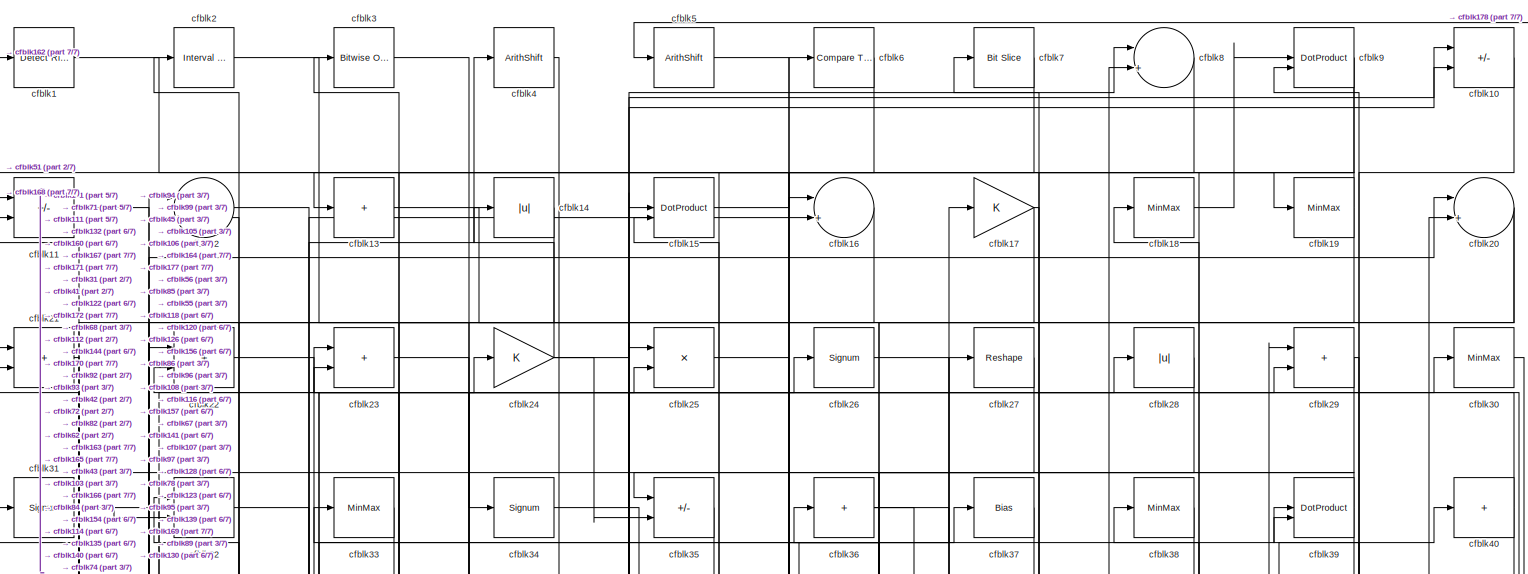
[diagram: root canvas - part 1/7, full width, top band]
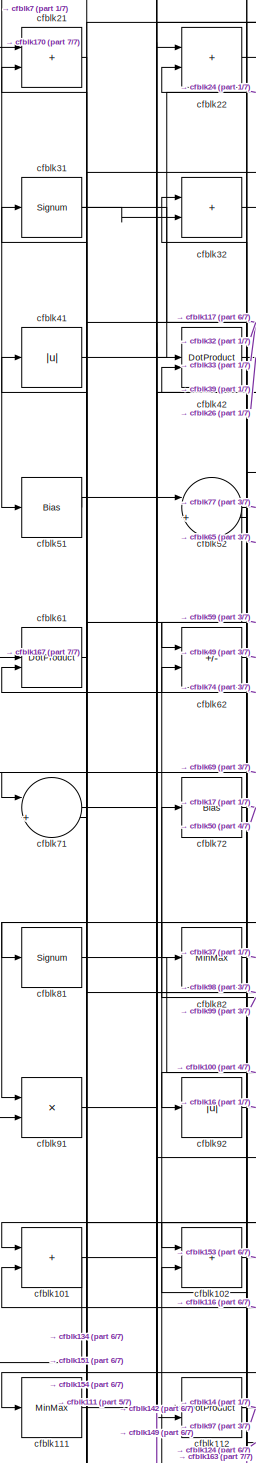
[diagram: root canvas - part 2/7, middle left region]
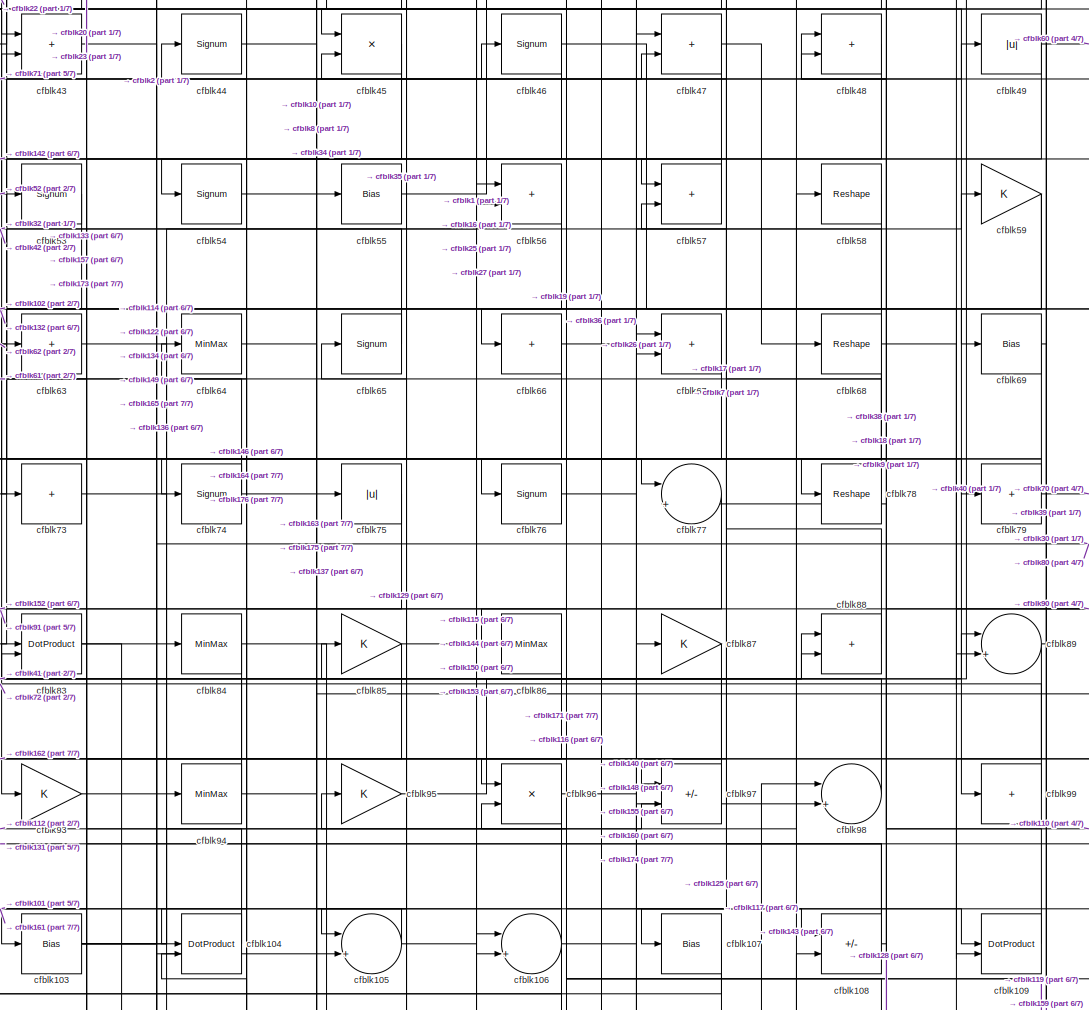
[diagram: root canvas - part 3/7, central region]
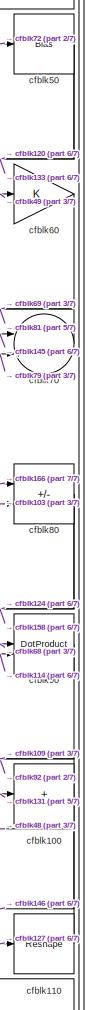
[diagram: root canvas - part 4/7, middle right region]
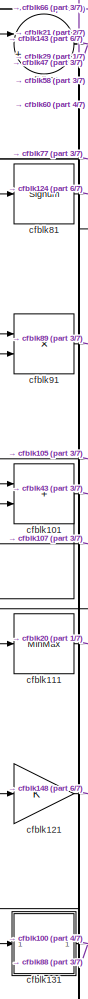
[diagram: root canvas - part 5/7, middle left region]
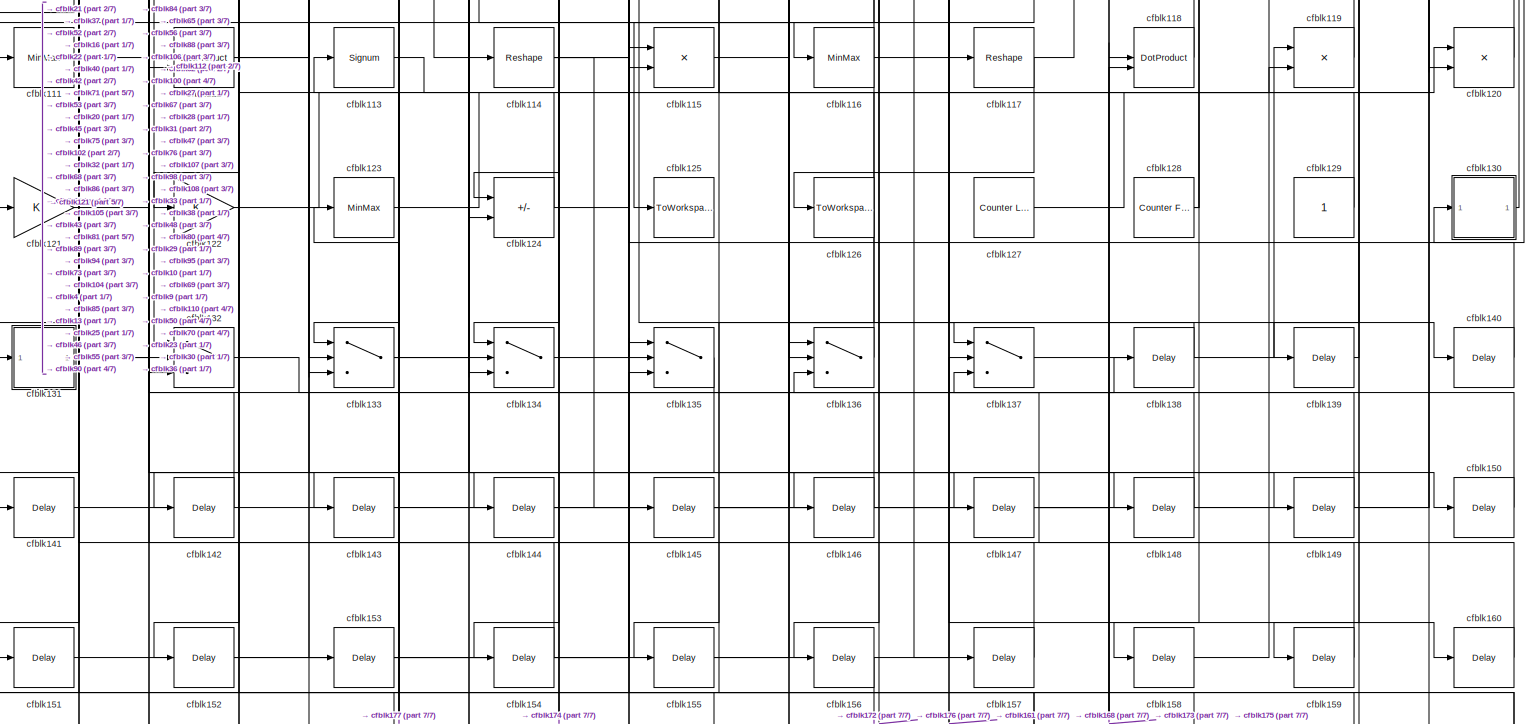
[diagram: root canvas - part 6/7, full width, bottom band]
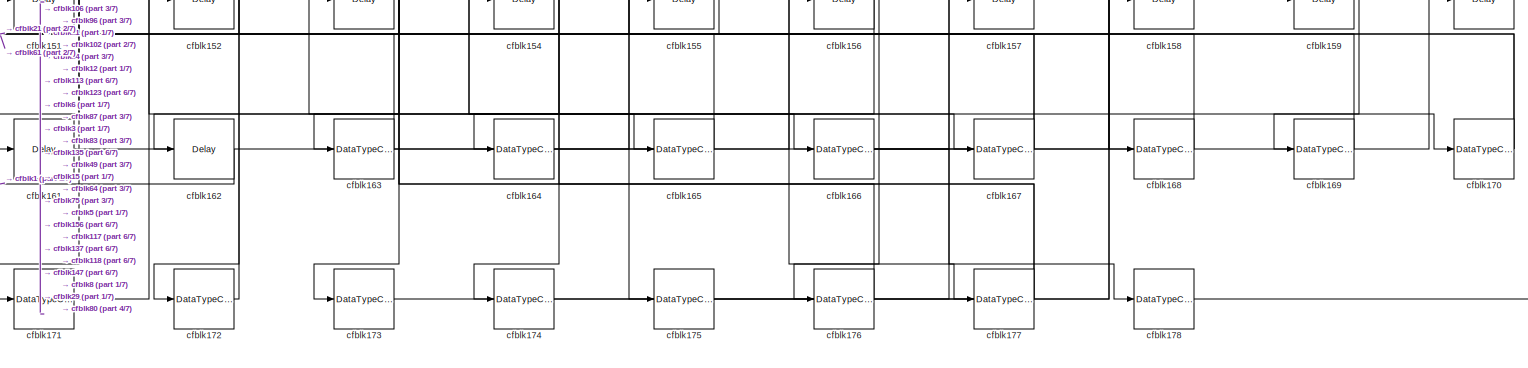
[diagram: root canvas - part 7/7, full width, bottom band]
MODEL slx_b1faa9f8dd1f
KIND model
CONFIG AbsTol = auto
CONFIG EnableMultiTasking = off
CONFIG FixedStep = auto
CONFIG MaxStep = auto
CONFIG MinStep = auto
CONFIG RelTol = 1e-3
CONFIG SampleTimeConstraint = Unconstrained
CONFIG SolverName = VariableStepAuto
CONFIG StartTime = 0.0
CONFIG StopTime = 10.0
BLOCK [Reference] cfblk1  REF=hdlsllib/Logic and Bit
Operations/Detect Rise
Positive
  SourceBlock = hdlsllib/Logic and Bit\nOperations/Detect Rise\nPositive
  SourceType = Detect Rise Positive
BLOCK [Sum] cfblk10
  IconShape = rectangular
  Inputs = +-
BLOCK [Sum] cfblk100
  IconShape = rectangular
  Inputs = +
BLOCK [Sum] cfblk101
  IconShape = rectangular
BLOCK [Sum] cfblk102
  IconShape = rectangular
BLOCK [Bias] cfblk103
  Bias = 0.0
  SaturateOnIntegerOverflow = off
BLOCK [DotProduct] cfblk104
  OutDataTypeStr = Inherit: Inherit via internal rule
BLOCK [Sum] cfblk105
  Inputs = |++
BLOCK [Sum] cfblk106
  Inputs = |++
BLOCK [Bias] cfblk107
  Bias = 0.0
  SaturateOnIntegerOverflow = off
BLOCK [Sum] cfblk108
  IconShape = rectangular
  Inputs = +-
BLOCK [DotProduct] cfblk109
  OutDataTypeStr = Inherit: Inherit via internal rule
BLOCK [Sum] cfblk11
  IconShape = rectangular
  Inputs = +-
BLOCK [Reshape] cfblk110
BLOCK [MinMax] cfblk111
BLOCK [DotProduct] cfblk112
  OutDataTypeStr = Inherit: Inherit via internal rule
BLOCK [Signum] cfblk113
BLOCK [Reshape] cfblk114
BLOCK [Product] cfblk115
  Inputs = */
  RndMeth = Zero
  SaturateOnIntegerOverflow = on
BLOCK [MinMax] cfblk116
BLOCK [Reshape] cfblk117
BLOCK [DotProduct] cfblk118
  OutDataTypeStr = Inherit: Inherit via internal rule
BLOCK [Product] cfblk119
  Inputs = */
  RndMeth = Zero
  SaturateOnIntegerOverflow = on
BLOCK [Sum] cfblk12
  Inputs = |++
BLOCK [Product] cfblk120
  Inputs = */
  RndMeth = Zero
  SaturateOnIntegerOverflow = on
BLOCK [Gain] cfblk121
BLOCK [Gain] cfblk122
BLOCK [MinMax] cfblk123
BLOCK [Sum] cfblk124
  IconShape = rectangular
  Inputs = +-
BLOCK [ToWorkspace] cfblk125
  MaxDataPoints = inf
  SampleTime = -1
  SaveFormat = Timeseries
  VariableName = simout
BLOCK [ToWorkspace] cfblk126
  MaxDataPoints = inf
  SampleTime = -1
  SaveFormat = Timeseries
  VariableName = simout
BLOCK [Reference] cfblk127  REF=hdlsllib/Sources/Counter
Limited
  SourceBlock = hdlsllib/Sources/Counter\nLimited
  SourceType = Counter Limited
BLOCK [Reference] cfblk128  REF=hdlsllib/Sources/Counter
Free-Running
  SourceBlock = hdlsllib/Sources/Counter\nFree-Running
  SourceType = Counter Free-Running
BLOCK [Constant] cfblk129
  SampleTime = -1
BLOCK [Sum] cfblk13
  IconShape = rectangular
  Inputs = +
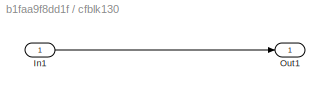
BLOCK [SubSystem] cfblk130
  LibrarySourceBlock = hdlsllib/Ports &\nSubsystems/Subsystem
BLOCK [Inport] cfblk130/In1
BLOCK [Outport] cfblk130/Out1
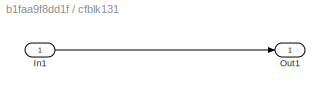
BLOCK [SubSystem] cfblk131
  LibrarySourceBlock = hdlsllib/Ports &\nSubsystems/Subsystem
BLOCK [Inport] cfblk131/In1
BLOCK [Outport] cfblk131/Out1
BLOCK [Switch] cfblk132
  InputSameDT = off
  SaturateOnIntegerOverflow = off
BLOCK [Switch] cfblk133
  InputSameDT = off
  SaturateOnIntegerOverflow = off
BLOCK [Switch] cfblk134
  InputSameDT = off
  SaturateOnIntegerOverflow = off
BLOCK [Switch] cfblk135
  InputSameDT = off
  SaturateOnIntegerOverflow = off
BLOCK [Switch] cfblk136
  InputSameDT = off
  SaturateOnIntegerOverflow = off
BLOCK [Switch] cfblk137
  InputSameDT = off
  SaturateOnIntegerOverflow = off
BLOCK [Delay] cfblk138
  InputPortMap = u0
  SampleTime = 1
BLOCK [Delay] cfblk139
  InputPortMap = u0
  SampleTime = 1
BLOCK [Abs] cfblk14
  SaturateOnIntegerOverflow = off
BLOCK [Delay] cfblk140
  InputPortMap = u0
  SampleTime = 1
BLOCK [Delay] cfblk141
  InputPortMap = u0
  SampleTime = 1
BLOCK [Delay] cfblk142
  InputPortMap = u0
  SampleTime = 1
BLOCK [Delay] cfblk143
  InputPortMap = u0
  SampleTime = 1
BLOCK [Delay] cfblk144
  InputPortMap = u0
  SampleTime = 1
BLOCK [Delay] cfblk145
  InputPortMap = u0
  SampleTime = 1
BLOCK [Delay] cfblk146
  InputPortMap = u0
  SampleTime = 1
BLOCK [Delay] cfblk147
  InputPortMap = u0
  SampleTime = 1
BLOCK [Delay] cfblk148
  InputPortMap = u0
  SampleTime = 1
BLOCK [Delay] cfblk149
  InputPortMap = u0
  SampleTime = 1
BLOCK [DotProduct] cfblk15
  OutDataTypeStr = Inherit: Inherit via internal rule
BLOCK [Delay] cfblk150
  InputPortMap = u0
  SampleTime = 1
BLOCK [Delay] cfblk151
  InputPortMap = u0
  SampleTime = 1
BLOCK [Delay] cfblk152
  InputPortMap = u0
  SampleTime = 1
BLOCK [Delay] cfblk153
  InputPortMap = u0
  SampleTime = 1
BLOCK [Delay] cfblk154
  InputPortMap = u0
  SampleTime = 1
BLOCK [Delay] cfblk155
  InputPortMap = u0
  SampleTime = 1
BLOCK [Delay] cfblk156
  InputPortMap = u0
  SampleTime = 1
BLOCK [Delay] cfblk157
  InputPortMap = u0
  SampleTime = 1
BLOCK [Delay] cfblk158
  InputPortMap = u0
  SampleTime = 1
BLOCK [Delay] cfblk159
  InputPortMap = u0
  SampleTime = 1
BLOCK [Sum] cfblk16
  Inputs = |++
BLOCK [Delay] cfblk160
  InputPortMap = u0
  SampleTime = 1
BLOCK [Delay] cfblk161
  InputPortMap = u0
  SampleTime = 1
BLOCK [Delay] cfblk162
  InputPortMap = u0
  SampleTime = 1
BLOCK [DataTypeConversion] cfblk163
  RndMeth = Floor
  SaturateOnIntegerOverflow = off
BLOCK [DataTypeConversion] cfblk164
  OutDataTypeStr = uint8
  RndMeth = Floor
  SaturateOnIntegerOverflow = off
BLOCK [DataTypeConversion] cfblk165
  OutDataTypeStr = boolean
  RndMeth = Floor
  SaturateOnIntegerOverflow = off
BLOCK [DataTypeConversion] cfblk166
  RndMeth = Floor
  SaturateOnIntegerOverflow = off
BLOCK [DataTypeConversion] cfblk167
  RndMeth = Floor
  SaturateOnIntegerOverflow = off
BLOCK [DataTypeConversion] cfblk168
  OutDataTypeStr = uint8
  RndMeth = Floor
  SaturateOnIntegerOverflow = off
BLOCK [DataTypeConversion] cfblk169
  OutDataTypeStr = uint8
  RndMeth = Floor
  SaturateOnIntegerOverflow = off
BLOCK [Gain] cfblk17
BLOCK [DataTypeConversion] cfblk170
  RndMeth = Floor
  SaturateOnIntegerOverflow = off
BLOCK [DataTypeConversion] cfblk171
  OutDataTypeStr = uint8
  RndMeth = Floor
  SaturateOnIntegerOverflow = off
BLOCK [DataTypeConversion] cfblk172
  OutDataTypeStr = uint8
  RndMeth = Floor
  SaturateOnIntegerOverflow = off
BLOCK [DataTypeConversion] cfblk173
  OutDataTypeStr = uint8
  RndMeth = Floor
  SaturateOnIntegerOverflow = off
BLOCK [DataTypeConversion] cfblk174
  OutDataTypeStr = uint8
  RndMeth = Floor
  SaturateOnIntegerOverflow = off
BLOCK [DataTypeConversion] cfblk175
  OutDataTypeStr = uint8
  RndMeth = Floor
  SaturateOnIntegerOverflow = off
BLOCK [DataTypeConversion] cfblk176
  OutDataTypeStr = uint8
  RndMeth = Floor
  SaturateOnIntegerOverflow = off
BLOCK [DataTypeConversion] cfblk177
  RndMeth = Floor
  SaturateOnIntegerOverflow = off
BLOCK [DataTypeConversion] cfblk178
  OutDataTypeStr = uint8
  RndMeth = Floor
  SaturateOnIntegerOverflow = off
BLOCK [MinMax] cfblk18
BLOCK [MinMax] cfblk19
BLOCK [Reference] cfblk2  REF=hdlsllib/Logic and Bit
Operations/Interval Test
  SourceBlock = hdlsllib/Logic and Bit\nOperations/Interval Test
  SourceType = Interval Test
BLOCK [Sum] cfblk20
  Inputs = |++
BLOCK [Sum] cfblk21
  IconShape = rectangular
BLOCK [Sum] cfblk22
  IconShape = rectangular
BLOCK [Sum] cfblk23
  IconShape = rectangular
BLOCK [Gain] cfblk24
BLOCK [Product] cfblk25
  Inputs = */
  RndMeth = Zero
  SaturateOnIntegerOverflow = on
BLOCK [Signum] cfblk26
BLOCK [Reshape] cfblk27
BLOCK [Abs] cfblk28
  SaturateOnIntegerOverflow = off
BLOCK [Sum] cfblk29
  IconShape = rectangular
BLOCK [Reference] cfblk3  REF=simulink/Logic and Bit
Operations/Bitwise
Operator
  LibrarySourceBlock = hdlsllib/Logic and Bit\nOperations/Bitwise\nOperator
  SourceBlock = simulink/Logic and Bit\nOperations/Bitwise\nOperator
  SourceType = Bitwise Operator
BLOCK [MinMax] cfblk30
BLOCK [Signum] cfblk31
BLOCK [Sum] cfblk32
  IconShape = rectangular
BLOCK [MinMax] cfblk33
BLOCK [Signum] cfblk34
BLOCK [Sum] cfblk35
  IconShape = rectangular
  Inputs = +-
BLOCK [Sum] cfblk36
  IconShape = rectangular
  Inputs = +
BLOCK [Bias] cfblk37
  Bias = 0.0
  SaturateOnIntegerOverflow = off
BLOCK [MinMax] cfblk38
BLOCK [DotProduct] cfblk39
  OutDataTypeStr = Inherit: Inherit via internal rule
BLOCK [ArithShift] cfblk4
  BitShiftNumber = 8
  InputPortMap = u0
BLOCK [Sum] cfblk40
  IconShape = rectangular
  Inputs = +
BLOCK [Abs] cfblk41
  SaturateOnIntegerOverflow = off
BLOCK [DotProduct] cfblk42
  OutDataTypeStr = Inherit: Inherit via internal rule
BLOCK [Sum] cfblk43
  IconShape = rectangular
BLOCK [Signum] cfblk44
BLOCK [Product] cfblk45
  Inputs = */
  RndMeth = Zero
  SaturateOnIntegerOverflow = on
BLOCK [Signum] cfblk46
BLOCK [Sum] cfblk47
  IconShape = rectangular
BLOCK [Sum] cfblk48
  IconShape = rectangular
BLOCK [Abs] cfblk49
  SaturateOnIntegerOverflow = off
BLOCK [ArithShift] cfblk5
  BitShiftNumber = 8
  InputPortMap = u0
BLOCK [Bias] cfblk50
  Bias = 0.0
  SaturateOnIntegerOverflow = off
BLOCK [Bias] cfblk51
  Bias = 0.0
  SaturateOnIntegerOverflow = off
BLOCK [Sum] cfblk52
  Inputs = |++
BLOCK [Signum] cfblk53
BLOCK [Signum] cfblk54
BLOCK [Bias] cfblk55
  Bias = 0.0
  SaturateOnIntegerOverflow = off
BLOCK [Sum] cfblk56
  IconShape = rectangular
BLOCK [Sum] cfblk57
  IconShape = rectangular
BLOCK [Reshape] cfblk58
BLOCK [Gain] cfblk59
BLOCK [Reference] cfblk6  REF=hdlsllib/Logic and Bit
Operations/Compare
To Constant
  SourceBlock = hdlsllib/Logic and Bit\nOperations/Compare\nTo Constant
  SourceType = Compare To Constant
BLOCK [Gain] cfblk60
BLOCK [DotProduct] cfblk61
  OutDataTypeStr = Inherit: Inherit via internal rule
BLOCK [Sum] cfblk62
  IconShape = rectangular
  Inputs = +-
BLOCK [Sum] cfblk63
  IconShape = rectangular
  Inputs = +
BLOCK [MinMax] cfblk64
BLOCK [Signum] cfblk65
BLOCK [Sum] cfblk66
  IconShape = rectangular
  Inputs = +
BLOCK [Sum] cfblk67
  IconShape = rectangular
BLOCK [Reshape] cfblk68
BLOCK [Bias] cfblk69
  Bias = 0.0
  SaturateOnIntegerOverflow = off
BLOCK [Reference] cfblk7  REF=hdlsllib/Logic and Bit
Operations/Bit Slice
  SourceBlock = hdlsllib/Logic and Bit\nOperations/Bit Slice
  SourceType = Bit Slice
BLOCK [Sum] cfblk70
  Inputs = |++
BLOCK [Sum] cfblk71
  Inputs = |++
BLOCK [Bias] cfblk72
  Bias = 0.0
  SaturateOnIntegerOverflow = off
BLOCK [Sum] cfblk73
  IconShape = rectangular
  Inputs = +
BLOCK [Signum] cfblk74
BLOCK [Abs] cfblk75
  SaturateOnIntegerOverflow = off
BLOCK [Signum] cfblk76
BLOCK [Sum] cfblk77
  Inputs = |++
BLOCK [Reshape] cfblk78
BLOCK [Sum] cfblk79
  IconShape = rectangular
  Inputs = +
BLOCK [Sum] cfblk8
  Inputs = |++
BLOCK [Sum] cfblk80
  IconShape = rectangular
  Inputs = +-
BLOCK [Signum] cfblk81
BLOCK [MinMax] cfblk82
BLOCK [DotProduct] cfblk83
  OutDataTypeStr = Inherit: Inherit via internal rule
BLOCK [MinMax] cfblk84
BLOCK [Gain] cfblk85
BLOCK [MinMax] cfblk86
BLOCK [Gain] cfblk87
BLOCK [Sum] cfblk88
  IconShape = rectangular
BLOCK [Sum] cfblk89
  Inputs = |++
BLOCK [DotProduct] cfblk9
  OutDataTypeStr = Inherit: Inherit via internal rule
BLOCK [DotProduct] cfblk90
  OutDataTypeStr = Inherit: Inherit via internal rule
BLOCK [Product] cfblk91
  Inputs = */
  RndMeth = Zero
  SaturateOnIntegerOverflow = on
BLOCK [Abs] cfblk92
  SaturateOnIntegerOverflow = off
BLOCK [Gain] cfblk93
BLOCK [MinMax] cfblk94
BLOCK [Gain] cfblk95
BLOCK [Product] cfblk96
  Inputs = */
  RndMeth = Zero
  SaturateOnIntegerOverflow = on
BLOCK [Sum] cfblk97
  IconShape = rectangular
  Inputs = +-
BLOCK [Sum] cfblk98
  Inputs = |++
BLOCK [Sum] cfblk99
  IconShape = rectangular
  Inputs = +
NET cfblk100:1 -> cfblk146:1, cfblk92:1
NET cfblk101:1 -> cfblk121:1, cfblk43:2
LINE cfblk102:1 -> cfblk153:1
NET cfblk103:1 -> cfblk16:1, cfblk30:1, cfblk58:1, cfblk80:2
LINE cfblk104:1 -> cfblk83:1
NET cfblk105:1 -> cfblk101:1, cfblk150:1
NET cfblk106:1 -> cfblk160:1, cfblk171:1, cfblk96:2
NET cfblk107:1 -> cfblk101:2, cfblk125:1
NET cfblk108:1 -> cfblk18:1, cfblk23:2, cfblk57:2
LINE cfblk109:1 -> cfblk77:2
LINE cfblk10:1 -> cfblk139:1
LINE cfblk110:1 -> cfblk48:1
LINE cfblk111:1 -> cfblk20:1
NET cfblk112:1 -> cfblk14:1, cfblk97:2
LINE cfblk113:1 -> cfblk120:1
NET cfblk114:1 -> cfblk145:1, cfblk29:2, cfblk90:2
LINE cfblk115:1 -> cfblk88:1
NET cfblk116:1 -> cfblk155:1, cfblk28:1, cfblk62:2
NET cfblk117:1 -> cfblk176:1, cfblk98:1
LINE cfblk118:1 -> cfblk33:1
LINE cfblk119:1 -> cfblk95:1
LINE cfblk11:1 -> cfblk167:1
LINE cfblk120:1 -> cfblk36:1
LINE cfblk121:1 -> cfblk148:1
LINE cfblk122:1 -> cfblk94:1
LINE cfblk123:1 -> cfblk29:1
NET cfblk124:1 -> cfblk115:1, cfblk52:2
LINE cfblk127:1 -> cfblk110:1
NET cfblk128:1 -> cfblk38:1, cfblk48:2
LINE cfblk129:1 -> cfblk85:1
LINE cfblk12:1 -> cfblk170:1
LINE cfblk130/In1:1 -> cfblk130/Out1:1
LINE cfblk130:1 -> cfblk23:1
LINE cfblk131/In1:1 -> cfblk131/Out1:1
NET cfblk131:1 -> cfblk100:1, cfblk88:2
LINE cfblk132:1 -> cfblk138:1
NET cfblk133:1 -> cfblk105:2, cfblk147:1
LINE cfblk134:1 -> cfblk55:1
LINE cfblk135:1 -> cfblk174:1
LINE cfblk136:1 -> cfblk65:1
LINE cfblk137:1 -> cfblk119:1
LINE cfblk138:1 -> cfblk136:2
LINE cfblk139:1 -> cfblk9:2
LINE cfblk13:1 -> cfblk135:2
LINE cfblk140:1 -> cfblk25:1
LINE cfblk141:1 -> cfblk20:2
LINE cfblk142:1 -> cfblk112:1
LINE cfblk143:1 -> cfblk108:2
LINE cfblk144:1 -> cfblk56:2
LINE cfblk145:1 -> cfblk70:1
LINE cfblk146:1 -> cfblk104:2
LINE cfblk147:1 -> cfblk168:1
LINE cfblk148:1 -> cfblk47:1
LINE cfblk149:1 -> cfblk42:1
LINE cfblk14:1 -> cfblk71:1
LINE cfblk150:1 -> cfblk136:3
LINE cfblk151:1 -> cfblk135:3
LINE cfblk152:1 -> cfblk135:1
LINE cfblk153:1 -> cfblk106:2
LINE cfblk154:1 -> cfblk21:2
LINE cfblk155:1 -> cfblk67:2
LINE cfblk156:1 -> cfblk172:1
LINE cfblk157:1 -> cfblk83:2
LINE cfblk158:1 -> cfblk119:2
LINE cfblk159:1 -> cfblk137:3
LINE cfblk15:1 -> cfblk19:1
LINE cfblk160:1 -> cfblk22:1
LINE cfblk161:1 -> cfblk137:2
LINE cfblk162:1 -> cfblk1:1
NET cfblk163:1 -> cfblk102:2, cfblk75:1
LINE cfblk164:1 -> cfblk6:1
LINE cfblk165:1 -> cfblk3:1
NET cfblk166:1 -> cfblk178:1, cfblk80:1, cfblk8:2
NET cfblk167:1 -> cfblk15:1, cfblk61:1
LINE cfblk168:1 -> cfblk11:1
LINE cfblk169:1 -> cfblk11:2
LINE cfblk16:1 -> cfblk132:2
NET cfblk170:1 -> cfblk15:2, cfblk21:1
LINE cfblk171:1 -> cfblk12:1
LINE cfblk172:1 -> cfblk12:2
LINE cfblk173:1 -> cfblk118:2
LINE cfblk174:1 -> cfblk87:1
LINE cfblk175:1 -> cfblk118:1
LINE cfblk176:1 -> cfblk64:1
NET cfblk177:1 -> cfblk113:1, cfblk123:1
LINE cfblk178:1 -> cfblk5:1
NET cfblk17:1 -> cfblk96:1, cfblk97:1
LINE cfblk18:1 -> cfblk9:1
NET cfblk19:1 -> cfblk13:1, cfblk86:1
LINE cfblk1:1 -> cfblk56:1
NET cfblk20:1 -> cfblk122:1, cfblk43:1
LINE cfblk21:1 -> cfblk111:1
LINE cfblk22:1 -> cfblk93:1
LINE cfblk23:1 -> cfblk34:1
NET cfblk24:1 -> cfblk10:2, cfblk35:2, cfblk4:1
LINE cfblk25:1 -> cfblk106:1
LINE cfblk26:1 -> cfblk108:1
LINE cfblk27:1 -> cfblk126:1
LINE cfblk28:1 -> cfblk156:1
NET cfblk29:1 -> cfblk131:1, cfblk169:1
LINE cfblk2:1 -> cfblk84:1
LINE cfblk30:1 -> cfblk130:1
NET cfblk31:1 -> cfblk117:1, cfblk32:2
LINE cfblk32:1 -> cfblk144:1
LINE cfblk33:1 -> cfblk62:1
LINE cfblk34:1 -> cfblk99:1
LINE cfblk35:1 -> cfblk45:1
NET cfblk36:1 -> cfblk157:1, cfblk67:1
LINE cfblk37:1 -> cfblk141:1
LINE cfblk38:1 -> cfblk74:1
NET cfblk39:1 -> cfblk35:1, cfblk82:1
LINE cfblk3:1 -> cfblk166:1
NET cfblk40:1 -> cfblk132:3, cfblk22:2
LINE cfblk41:1 -> cfblk24:1
LINE cfblk42:1 -> cfblk26:1
LINE cfblk43:1 -> cfblk149:1
LINE cfblk44:1 -> cfblk109:1
NET cfblk45:1 -> cfblk142:1, cfblk53:1
NET cfblk46:1 -> cfblk115:2, cfblk89:2
NET cfblk47:1 -> cfblk57:1, cfblk68:1
LINE cfblk48:1 -> cfblk103:1
NET cfblk49:1 -> cfblk164:1, cfblk60:1
LINE cfblk4:1 -> cfblk154:1
NET cfblk50:1 -> cfblk120:2, cfblk133:2
LINE cfblk51:1 -> cfblk52:1
NET cfblk52:1 -> cfblk134:2, cfblk151:1, cfblk77:1
LINE cfblk53:1 -> cfblk132:1
LINE cfblk54:1 -> cfblk46:1
LINE cfblk55:1 -> cfblk27:1
LINE cfblk56:1 -> cfblk66:1
LINE cfblk57:1 -> cfblk54:1
LINE cfblk58:1 -> cfblk71:2
NET cfblk59:1 -> cfblk102:1, cfblk73:1
LINE cfblk5:1 -> cfblk177:1
LINE cfblk60:1 -> cfblk81:1
LINE cfblk61:1 -> cfblk31:1
LINE cfblk62:1 -> cfblk49:1
LINE cfblk63:1 -> cfblk79:1
LINE cfblk64:1 -> cfblk175:1
LINE cfblk65:1 -> cfblk42:2
NET cfblk66:1 -> cfblk59:1, cfblk91:2
LINE cfblk67:1 -> cfblk116:1
NET cfblk68:1 -> cfblk104:1, cfblk133:3, cfblk32:1, cfblk90:1
NET cfblk69:1 -> cfblk112:2, cfblk159:1
LINE cfblk6:1 -> cfblk163:1
LINE cfblk70:1 -> cfblk69:1
NET cfblk71:1 -> cfblk143:1, cfblk47:2
NET cfblk72:1 -> cfblk17:1, cfblk50:1
LINE cfblk73:1 -> cfblk136:1
NET cfblk74:1 -> cfblk61:2, cfblk8:1
LINE cfblk75:1 -> cfblk152:1
LINE cfblk76:1 -> cfblk140:1
LINE cfblk77:1 -> cfblk91:1
NET cfblk78:1 -> cfblk2:1, cfblk7:1
NET cfblk79:1 -> cfblk70:2, cfblk76:1
LINE cfblk7:1 -> cfblk51:1
NET cfblk80:1 -> cfblk124:1, cfblk158:1
LINE cfblk81:1 -> cfblk124:2
LINE cfblk82:1 -> cfblk37:1
NET cfblk83:1 -> cfblk114:1, cfblk165:1
NET cfblk84:1 -> cfblk137:1, cfblk162:1
NET cfblk85:1 -> cfblk134:1, cfblk39:2
LINE cfblk86:1 -> cfblk133:1
LINE cfblk87:1 -> cfblk173:1
LINE cfblk88:1 -> cfblk45:2
NET cfblk89:1 -> cfblk134:3, cfblk39:1
LINE cfblk8:1 -> cfblk105:1
LINE cfblk90:1 -> cfblk109:2
LINE cfblk91:1 -> cfblk89:1
LINE cfblk92:1 -> cfblk16:2
LINE cfblk93:1 -> cfblk25:2
NET cfblk94:1 -> cfblk10:1, cfblk63:1
LINE cfblk95:1 -> cfblk40:1
NET cfblk96:1 -> cfblk161:1, cfblk98:2
LINE cfblk97:1 -> cfblk44:1
LINE cfblk98:1 -> cfblk41:1
LINE cfblk99:1 -> cfblk72:1
NET cfblk9:1 -> cfblk107:1, cfblk78:1
note: NET lines group one-source signal fan-out (src -> all destinations, sorted); 1:1 wires keep LINE
